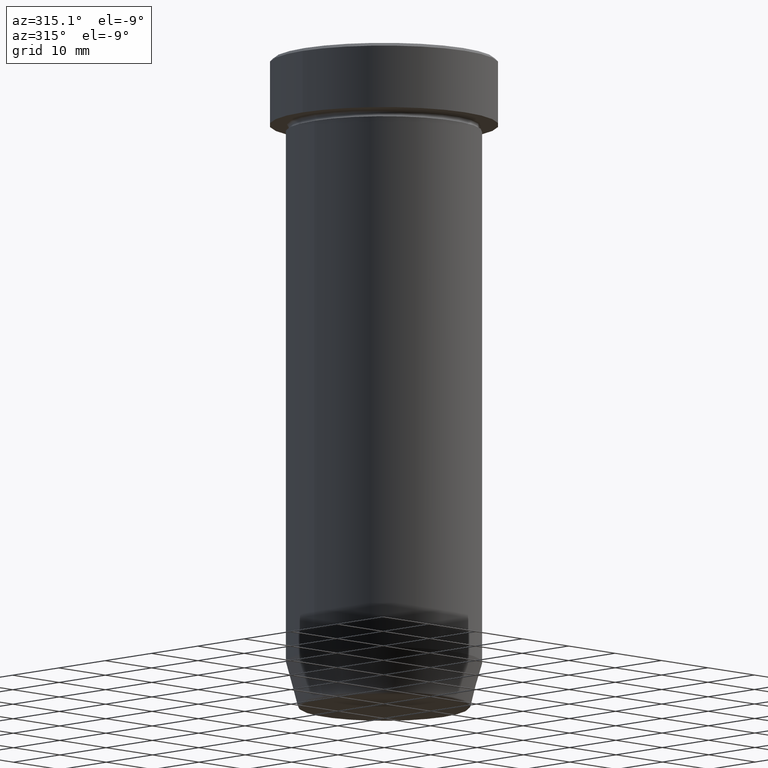
[diagram: clean part render]
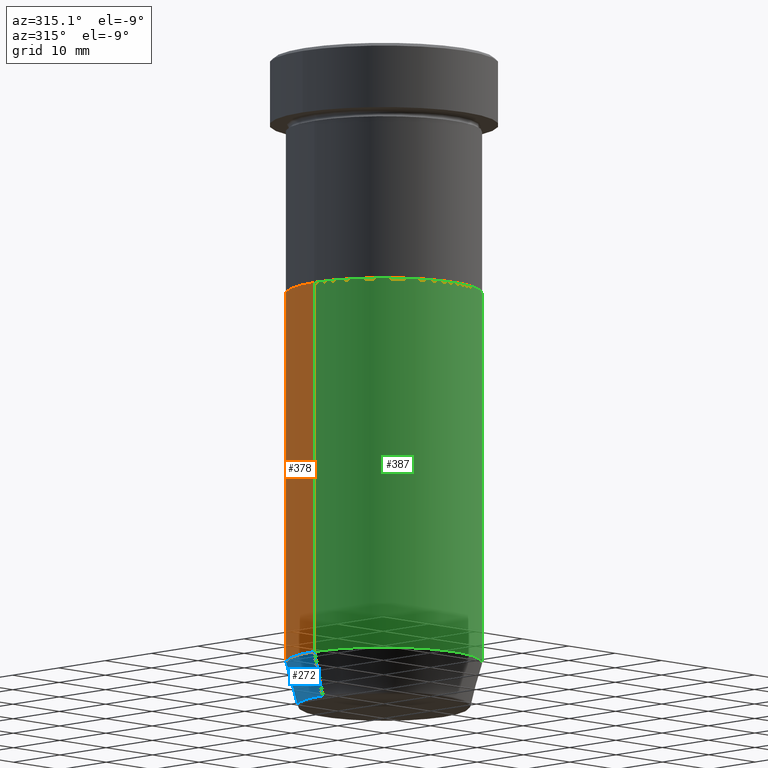
[diagram: same view with three faces highlighted in distinct colors, each labeled with its STEP entity id]
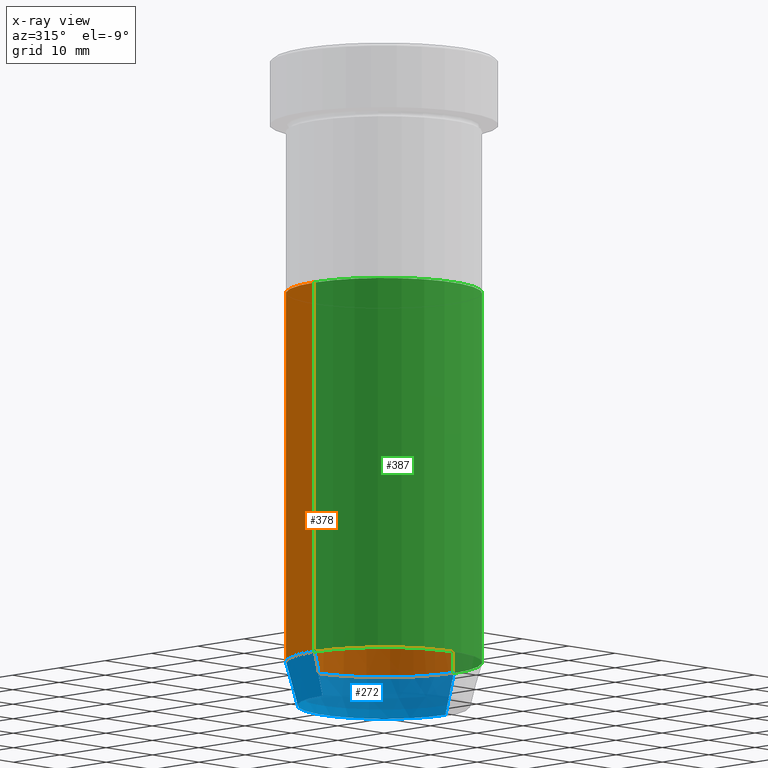
[diagram: x-ray of the same camera — body ghosted, the three highlighted faces saturated]
A machine part, auxiliary view with three faces highlighted in distinct colors.
The next image is the same camera in x-ray (body ghosted, the three faces saturated) — at least one of them is partly hidden behind the body in this view.
Their STEP definitions:

[orange] entity #378 — the highlighted cylindrical surface (partial cylindrical patch) has radius 15 mm, axis along (-0, -0, 1).
#38 = DIRECTION ( 'NONE',  ( 1.000000000000000000, 0.000000000000000000, 0.000000000000000000 ) ) ;
#55 = ORIENTED_EDGE ( 'NONE', *, *, #497, .T. ) ;
#93 = DIRECTION ( 'NONE',  ( -0.000000000000000000, -0.000000000000000000, 1.000000000000000000 ) ) ;
#94 = DIRECTION ( 'NONE',  ( -0.000000000000000000, -0.000000000000000000, 1.000000000000000000 ) ) ;
#116 = CARTESIAN_POINT ( 'NONE',  ( 15.00000000000000000, 0.000000000000000000, -93.00000000000000000 ) ) ;
#122 = VERTEX_POINT ( 'NONE', #116 ) ;
#127 = EDGE_LOOP ( 'NONE', ( #269, #55, #227, #584 ) ) ;
#133 = AXIS2_PLACEMENT_3D ( 'NONE', #247, #288, #459 ) ;
#134 = CYLINDRICAL_SURFACE ( 'NONE', #431, 15.00000000000000000 ) ;
#139 = CARTESIAN_POINT ( 'NONE',  ( -15.00000000000000000, 1.836970198721029589E-15, -36.00000000000000000 ) ) ;
#169 = CARTESIAN_POINT ( 'NONE',  ( -15.00000000000000000, 1.836970198721029589E-15, -93.00000000000000000 ) ) ;
#176 = VECTOR ( 'NONE', #94, 1000.000000000000000 ) ;
#191 = CARTESIAN_POINT ( 'NONE',  ( 0.000000000000000000, 0.000000000000000000, -36.00000000000000000 ) ) ;
#194 = DIRECTION ( 'NONE',  ( -0.000000000000000000, -0.000000000000000000, 1.000000000000000000 ) ) ;
#227 = ORIENTED_EDGE ( 'NONE', *, *, #573, .F. ) ;
#234 = CARTESIAN_POINT ( 'NONE',  ( -15.00000000000000000, 1.836970198721029589E-15, 0.000000000000000000 ) ) ;
#241 = VECTOR ( 'NONE', #93, 1000.000000000000000 ) ;
#247 = CARTESIAN_POINT ( 'NONE',  ( 0.000000000000000000, 0.000000000000000000, -93.00000000000000000 ) ) ;
#256 = DIRECTION ( 'NONE',  ( 1.000000000000000000, 0.000000000000000000, 0.000000000000000000 ) ) ;
#269 = ORIENTED_EDGE ( 'NONE', *, *, #476, .T. ) ;
#282 = CIRCLE ( 'NONE', #523, 15.00000000000000000 ) ;
#286 = LINE ( 'NONE', #234, #176 ) ;
#288 = DIRECTION ( 'NONE',  ( -0.000000000000000000, -0.000000000000000000, 1.000000000000000000 ) ) ;
#378 = ADVANCED_FACE ( 'NONE', ( #455 ), #134, .T. ) ;
#399 = DIRECTION ( 'NONE',  ( -0.000000000000000000, -0.000000000000000000, 1.000000000000000000 ) ) ;
#415 = CARTESIAN_POINT ( 'NONE',  ( 15.00000000000000000, 0.000000000000000000, 0.000000000000000000 ) ) ;
#431 = AXIS2_PLACEMENT_3D ( 'NONE', #483, #399, #256 ) ;
#441 = VERTEX_POINT ( 'NONE', #169 ) ;
#451 = CIRCLE ( 'NONE', #133, 15.00000000000000000 ) ;
#455 = FACE_OUTER_BOUND ( 'NONE', #127, .T. ) ;
#459 = DIRECTION ( 'NONE',  ( 1.000000000000000000, 0.000000000000000000, 0.000000000000000000 ) ) ;
#461 = CARTESIAN_POINT ( 'NONE',  ( 15.00000000000000000, 0.000000000000000000, -36.00000000000000000 ) ) ;
#465 = EDGE_CURVE ( 'NONE', #122, #514, #552, .T. ) ;
#466 = VERTEX_POINT ( 'NONE', #139 ) ;
#476 = EDGE_CURVE ( 'NONE', #122, #441, #451, .T. ) ;
#483 = CARTESIAN_POINT ( 'NONE',  ( 0.000000000000000000, 0.000000000000000000, 0.000000000000000000 ) ) ;
#497 = EDGE_CURVE ( 'NONE', #441, #466, #286, .T. ) ;
#514 = VERTEX_POINT ( 'NONE', #461 ) ;
#523 = AXIS2_PLACEMENT_3D ( 'NONE', #191, #194, #38 ) ;
#552 = LINE ( 'NONE', #415, #241 ) ;
#573 = EDGE_CURVE ( 'NONE', #514, #466, #282, .T. ) ;
#584 = ORIENTED_EDGE ( 'NONE', *, *, #465, .F. ) ;

[blue] entity #272 — the highlighted conical surface has half-angle 15 deg.
#8 = ORIENTED_EDGE ( 'NONE', *, *, #476, .F. ) ;
#18 = EDGE_LOOP ( 'NONE', ( #540, #107, #8, #426 ) ) ;
#43 = CARTESIAN_POINT ( 'NONE',  ( -13.22365507213718594, 1.728200442216588189E-15, -99.62940952255127058 ) ) ;
#44 = DIRECTION ( 'NONE',  ( 0.2588190451025210725, 0.000000000000000000, 0.9659258262890680902 ) ) ;
#58 = VECTOR ( 'NONE', #491, 1000.000000000000114 ) ;
#107 = ORIENTED_EDGE ( 'NONE', *, *, #180, .T. ) ;
#115 = EDGE_CURVE ( 'NONE', #226, #212, #440, .T. ) ;
#116 = CARTESIAN_POINT ( 'NONE',  ( 15.00000000000000000, 0.000000000000000000, -93.00000000000000000 ) ) ;
#122 = VERTEX_POINT ( 'NONE', #116 ) ;
#128 = LINE ( 'NONE', #317, #58 ) ;
#133 = AXIS2_PLACEMENT_3D ( 'NONE', #247, #288, #459 ) ;
#169 = CARTESIAN_POINT ( 'NONE',  ( -15.00000000000000000, 1.836970198721029589E-15, -93.00000000000000000 ) ) ;
#180 = EDGE_CURVE ( 'NONE', #212, #441, #128, .T. ) ;
#212 = VERTEX_POINT ( 'NONE', #43 ) ;
#226 = VERTEX_POINT ( 'NONE', #237 ) ;
#232 = AXIS2_PLACEMENT_3D ( 'NONE', #405, #392, #579 ) ;
#237 = CARTESIAN_POINT ( 'NONE',  ( 13.22365507213718594, 0.000000000000000000, -99.62940952255127058 ) ) ;
#247 = CARTESIAN_POINT ( 'NONE',  ( 0.000000000000000000, 0.000000000000000000, -93.00000000000000000 ) ) ;
#272 = ADVANCED_FACE ( 'NONE', ( #454 ), #463, .T. ) ;
#288 = DIRECTION ( 'NONE',  ( -0.000000000000000000, -0.000000000000000000, 1.000000000000000000 ) ) ;
#317 = CARTESIAN_POINT ( 'NONE',  ( -13.12435565298213547, 1.607270014129604385E-15, -100.0000000000000000 ) ) ;
#324 = VECTOR ( 'NONE', #44, 1000.000000000000114 ) ;
#325 = DIRECTION ( 'NONE',  ( -0.000000000000000000, -0.000000000000000000, 1.000000000000000000 ) ) ;
#331 = CARTESIAN_POINT ( 'NONE',  ( 0.000000000000000000, 0.000000000000000000, -100.0000000000000000 ) ) ;
#377 = LINE ( 'NONE', #547, #324 ) ;
#392 = DIRECTION ( 'NONE',  ( -0.000000000000000000, -0.000000000000000000, 1.000000000000000000 ) ) ;
#405 = CARTESIAN_POINT ( 'NONE',  ( 0.000000000000000000, 0.000000000000000000, -99.62940952255127058 ) ) ;
#426 = ORIENTED_EDGE ( 'NONE', *, *, #521, .F. ) ;
#440 = CIRCLE ( 'NONE', #232, 13.22365507213718594 ) ;
#441 = VERTEX_POINT ( 'NONE', #169 ) ;
#451 = CIRCLE ( 'NONE', #133, 15.00000000000000000 ) ;
#454 = FACE_OUTER_BOUND ( 'NONE', #18, .T. ) ;
#459 = DIRECTION ( 'NONE',  ( 1.000000000000000000, 0.000000000000000000, 0.000000000000000000 ) ) ;
#463 = CONICAL_SURFACE ( 'NONE', #590, 13.12435565298213547, 0.2617993877991497964 ) ;
#476 = EDGE_CURVE ( 'NONE', #122, #441, #451, .T. ) ;
#491 = DIRECTION ( 'NONE',  ( -0.2588190451025210725, 3.169619151431769255E-17, 0.9659258262890680902 ) ) ;
#498 = DIRECTION ( 'NONE',  ( 1.000000000000000000, 0.000000000000000000, 0.000000000000000000 ) ) ;
#521 = EDGE_CURVE ( 'NONE', #226, #122, #377, .T. ) ;
#540 = ORIENTED_EDGE ( 'NONE', *, *, #115, .T. ) ;
#547 = CARTESIAN_POINT ( 'NONE',  ( 13.12435565298213547, 0.000000000000000000, -100.0000000000000000 ) ) ;
#579 = DIRECTION ( 'NONE',  ( -1.000000000000000000, 0.000000000000000000, 0.000000000000000000 ) ) ;
#590 = AXIS2_PLACEMENT_3D ( 'NONE', #331, #325, #498 ) ;

[green] entity #387 — the highlighted cylindrical surface (partial cylindrical patch) has radius 15 mm, axis along (-0, -0, 1).
#39 = EDGE_CURVE ( 'NONE', #466, #514, #287, .T. ) ;
#51 = EDGE_LOOP ( 'NONE', ( #157, #561, #100, #198 ) ) ;
#66 = DIRECTION ( 'NONE',  ( 1.000000000000000000, 0.000000000000000000, 0.000000000000000000 ) ) ;
#75 = DIRECTION ( 'NONE',  ( -0.000000000000000000, -0.000000000000000000, 1.000000000000000000 ) ) ;
#93 = DIRECTION ( 'NONE',  ( -0.000000000000000000, -0.000000000000000000, 1.000000000000000000 ) ) ;
#94 = DIRECTION ( 'NONE',  ( -0.000000000000000000, -0.000000000000000000, 1.000000000000000000 ) ) ;
#100 = ORIENTED_EDGE ( 'NONE', *, *, #465, .T. ) ;
#110 = CIRCLE ( 'NONE', #450, 15.00000000000000000 ) ;
#116 = CARTESIAN_POINT ( 'NONE',  ( 15.00000000000000000, 0.000000000000000000, -93.00000000000000000 ) ) ;
#122 = VERTEX_POINT ( 'NONE', #116 ) ;
#139 = CARTESIAN_POINT ( 'NONE',  ( -15.00000000000000000, 1.836970198721029589E-15, -36.00000000000000000 ) ) ;
#157 = ORIENTED_EDGE ( 'NONE', *, *, #497, .F. ) ;
#164 = AXIS2_PLACEMENT_3D ( 'NONE', #574, #433, #66 ) ;
#169 = CARTESIAN_POINT ( 'NONE',  ( -15.00000000000000000, 1.836970198721029589E-15, -93.00000000000000000 ) ) ;
#176 = VECTOR ( 'NONE', #94, 1000.000000000000000 ) ;
#198 = ORIENTED_EDGE ( 'NONE', *, *, #39, .F. ) ;
#200 = AXIS2_PLACEMENT_3D ( 'NONE', #320, #75, #274 ) ;
#228 = CYLINDRICAL_SURFACE ( 'NONE', #164, 15.00000000000000000 ) ;
#234 = CARTESIAN_POINT ( 'NONE',  ( -15.00000000000000000, 1.836970198721029589E-15, 0.000000000000000000 ) ) ;
#240 = EDGE_CURVE ( 'NONE', #441, #122, #110, .T. ) ;
#241 = VECTOR ( 'NONE', #93, 1000.000000000000000 ) ;
#274 = DIRECTION ( 'NONE',  ( 1.000000000000000000, 0.000000000000000000, 0.000000000000000000 ) ) ;
#286 = LINE ( 'NONE', #234, #176 ) ;
#287 = CIRCLE ( 'NONE', #200, 15.00000000000000000 ) ;
#320 = CARTESIAN_POINT ( 'NONE',  ( 0.000000000000000000, 0.000000000000000000, -36.00000000000000000 ) ) ;
#387 = ADVANCED_FACE ( 'NONE', ( #577 ), #228, .T. ) ;
#415 = CARTESIAN_POINT ( 'NONE',  ( 15.00000000000000000, 0.000000000000000000, 0.000000000000000000 ) ) ;
#417 = DIRECTION ( 'NONE',  ( 1.000000000000000000, 0.000000000000000000, 0.000000000000000000 ) ) ;
#433 = DIRECTION ( 'NONE',  ( -0.000000000000000000, -0.000000000000000000, 1.000000000000000000 ) ) ;
#441 = VERTEX_POINT ( 'NONE', #169 ) ;
#450 = AXIS2_PLACEMENT_3D ( 'NONE', #507, #452, #417 ) ;
#452 = DIRECTION ( 'NONE',  ( -0.000000000000000000, -0.000000000000000000, 1.000000000000000000 ) ) ;
#461 = CARTESIAN_POINT ( 'NONE',  ( 15.00000000000000000, 0.000000000000000000, -36.00000000000000000 ) ) ;
#465 = EDGE_CURVE ( 'NONE', #122, #514, #552, .T. ) ;
#466 = VERTEX_POINT ( 'NONE', #139 ) ;
#497 = EDGE_CURVE ( 'NONE', #441, #466, #286, .T. ) ;
#507 = CARTESIAN_POINT ( 'NONE',  ( 0.000000000000000000, 0.000000000000000000, -93.00000000000000000 ) ) ;
#514 = VERTEX_POINT ( 'NONE', #461 ) ;
#552 = LINE ( 'NONE', #415, #241 ) ;
#561 = ORIENTED_EDGE ( 'NONE', *, *, #240, .T. ) ;
#574 = CARTESIAN_POINT ( 'NONE',  ( 0.000000000000000000, 0.000000000000000000, 0.000000000000000000 ) ) ;
#577 = FACE_OUTER_BOUND ( 'NONE', #51, .T. ) ;